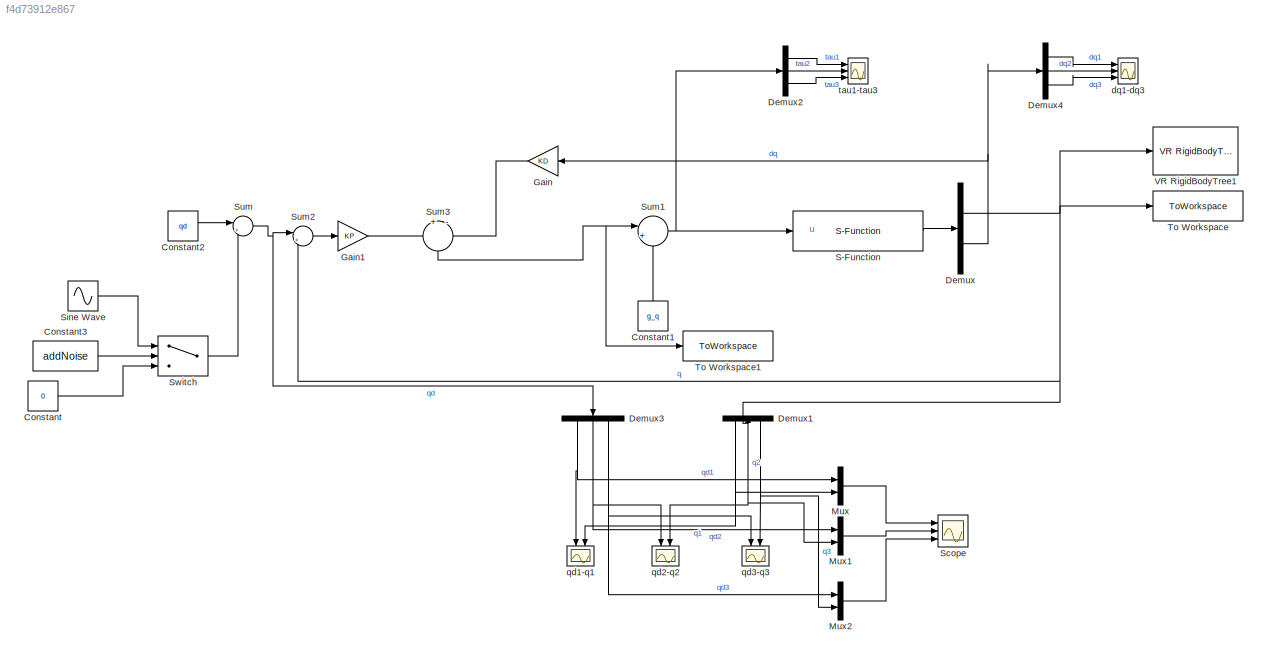
MODEL slx_f4d73912e867
KIND model
CONFIG AbsTol = auto
CONFIG EnableMultiTasking = off
CONFIG FixedStep = Ts
CONFIG MaxStep = auto
CONFIG MinStep = auto
CONFIG RelTol = 1e-3
CONFIG SampleTimeConstraint = Unconstrained
CONFIG SolverName = FixedStepAuto
CONFIG StartTime = 0.0
CONFIG StopTime = 2
BLOCK [Constant] Constant
  Value = 0
BLOCK [Constant] Constant1
  NameLocation = left
  Value = g_q
BLOCK [Constant] Constant2
  Value = qd
BLOCK [Constant] Constant3
  Value = addNoise
BLOCK [Demux] Demux
  Outputs = 2
  Ports = [1, 2]
BLOCK [Demux] Demux1
  NameLocation = left
  Outputs = myRobot.N
  Ports = [1, 3]
BLOCK [Demux] Demux2
  Outputs = myRobot.N
  Ports = [1, 3]
BLOCK [Demux] Demux3
  NameLocation = left
  Outputs = myRobot.N
  Ports = [1, 3]
BLOCK [Demux] Demux4
  Outputs = myRobot.N
  Ports = [1, 3]
BLOCK [Gain] Gain
  Gain = KD
BLOCK [Gain] Gain1
  Gain = KP
BLOCK [Mux] Mux
  DisplayOption = bar
  Inputs = 2
  Ports = [2, 1]
BLOCK [Mux] Mux1
  DisplayOption = bar
  Inputs = 2
  Ports = [2, 1]
BLOCK [Mux] Mux2
  DisplayOption = bar
  Inputs = 2
  Ports = [2, 1]
BLOCK [S-Function] S-Function
  EnableBusSupport = off
  FunctionName = fwd_dyn_joint_lagrangian
  Parameters = myRobot,qi,dqi
  Ports = [1, 1]
  SFcnIsStateOwnerBlock = off
  SFunctionDeploymentMode = off
BLOCK [Scope] Scope
  Floating = off
  NumInputPorts = 3
  Ports = [3]
  ScopeSpecificationString = Simulink.scopes.TimeScopeBlockCfg('CurrentConfiguration', extmgr.ConfigurationSet(extmgr.Configuration('Core','General UI',true),extmgr.Configuration('Core','Source UI',true),extmgr.Configuration('Sources','WiredSimulink',true,'DataLoggingVariableName','ScopeData1'),extmgr.Configuration('Visuals','Time Domain',true,'SerializedDisplays',{struct('MinYLimReal','-0.4052','MaxYLimReal','3.64679','YLabe...<+2703ch>
BLOCK [Sin] Sine Wave
  Amplitude = 0.1
  Frequency = 5
  Ports = [0, 1]
  SampleTime = 0
BLOCK [Sum] Sum
  Inputs = |++
  Ports = [2, 1]
BLOCK [Sum] Sum1
  Inputs = |++
  Ports = [2, 1]
BLOCK [Sum] Sum2
  Inputs = |+-
  Ports = [2, 1]
BLOCK [Sum] Sum3
  Inputs = +||-
  NameLocation = right
  Ports = [2, 1]
BLOCK [Switch] Switch
  Criteria = u2 > Threshold
  InputSameDT = off
  SaturateOnIntegerOverflow = off
BLOCK [ToWorkspace] To Workspace
  FixptAsFi = on
  MaxDataPoints = inf
  Ports = [1]
  SampleTime = -1
  SaveFormat = Timeseries
  VariableName = q_result
BLOCK [ToWorkspace] To Workspace1
  FixptAsFi = on
  MaxDataPoints = inf
  Ports = [1]
  SampleTime = -1
  SaveFormat = Timeseries
  VariableName = tau_noG
BLOCK [Reference] VR RigidBodyTree1  REF=vrlib/VR RigidBodyTree
  Ports = [1]
  SourceBlock = vrlib/VR RigidBodyTree
  SourceProductBaseCode = SL
  SourceType = VR RigidBodyTree
BLOCK [Scope] dq1-dq3
  Floating = off
  NumInputPorts = 3
  Ports = [3]
  ScopeSpecificationString = Simulink.scopes.TimeScopeBlockCfg('CurrentConfiguration', extmgr.ConfigurationSet(extmgr.Configuration('Core','General UI',true),extmgr.Configuration('Core','Source UI',true),extmgr.Configuration('Sources','WiredSimulink',true,'DataLoggingVariableName','ScopeData1'),extmgr.Configuration('Visuals','Time Domain',true,'SerializedDisplays',{struct('MinYLimReal','-2.92013','MaxYLimReal','26.28115','YLa...<+2737ch>
BLOCK [Scope] qd1-q1
  Floating = off
  NameLocation = left
  NumInputPorts = 2
  Ports = [2]
  ScopeSpecificationString = Simulink.scopes.TimeScopeBlockCfg('CurrentConfiguration', extmgr.ConfigurationSet(extmgr.Configuration('Core','General UI',true),extmgr.Configuration('Core','Source UI',true),extmgr.Configuration('Sources','WiredSimulink',true,'DataLoggingVariableName','ScopeData1'),extmgr.Configuration('Visuals','Time Domain',true,'SerializedDisplays',{struct('MinYLimReal','-0.3927','MaxYLimReal','3.53429','YLabe...<+1702ch>
BLOCK [Scope] qd2-q2
  Floating = off
  NameLocation = left
  NumInputPorts = 2
  Ports = [2]
  ScopeSpecificationString = Simulink.scopes.TimeScopeBlockCfg('CurrentConfiguration', extmgr.ConfigurationSet(extmgr.Configuration('Core','General UI',true),extmgr.Configuration('Core','Source UI',true),extmgr.Configuration('Sources','WiredSimulink',true,'DataLoggingVariableName','ScopeData2'),extmgr.Configuration('Visuals','Time Domain',true,'SerializedDisplays',{struct('MinYLimReal','-0.31169','MaxYLimReal','0.03463','YLab...<+1722ch>
BLOCK [Scope] qd3-q3
  Floating = off
  NameLocation = left
  NumInputPorts = 2
  Ports = [2]
  ScopeSpecificationString = Simulink.scopes.TimeScopeBlockCfg('CurrentConfiguration', extmgr.ConfigurationSet(extmgr.Configuration('Core','General UI',true),extmgr.Configuration('Core','Source UI',true),extmgr.Configuration('Sources','WiredSimulink',true,'DataLoggingVariableName','ScopeData3'),extmgr.Configuration('Visuals','Time Domain',true,'SerializedDisplays',{struct('MinYLimReal','-3.53429','MaxYLimReal','0.3927','YLabe...<+1731ch>
BLOCK [Scope] tau1-tau3
  Floating = off
  NumInputPorts = 3
  Ports = [3]
  ScopeSpecificationString = Simulink.scopes.TimeScopeBlockCfg('CurrentConfiguration', extmgr.ConfigurationSet(extmgr.Configuration('Core','General UI',true),extmgr.Configuration('Core','Source UI',true),extmgr.Configuration('Sources','WiredSimulink',true),extmgr.Configuration('Visuals','Time Domain',true,'SerializedDisplays',{struct('MinYLimReal','-43.31628','MaxYLimReal','179.34585','YLabelReal','','MinYLimMag','0.00000','M...<+2777ch>
ANNOTATION (root): u
LINE Constant1:1 -> Sum1:2
LINE Constant2:1 -> Sum:1
LINE Constant3:1 -> Switch:2
LINE Constant:1 -> Switch:3
NET Demux1:1 -> Mux:2, qd1-q1:2
NET Demux1:2 -> Mux1:2, qd2-q2:2
NET Demux1:3 -> Mux2:2, qd3-q3:2
LINE Demux2:1 -> tau1-tau3:1
LINE Demux2:2 -> tau1-tau3:2
LINE Demux2:3 -> tau1-tau3:3
NET Demux3:1 -> Mux:1, qd1-q1:1
NET Demux3:2 -> Mux1:1, qd2-q2:1
NET Demux3:3 -> Mux2:1, qd3-q3:1
LINE Demux4:1 -> dq1-dq3:1
LINE Demux4:2 -> dq1-dq3:2
LINE Demux4:3 -> dq1-dq3:3
NET Demux:1 -> Demux1:1, Sum2:2, To Workspace:1, VR RigidBodyTree1:1
NET Demux:2 -> Demux4:1, Gain:1
LINE Gain1:1 -> Sum3:1
LINE Gain:1 -> Sum3:2
LINE Mux1:1 -> Scope:2
LINE Mux2:1 -> Scope:3
LINE Mux:1 -> Scope:1
LINE S-Function:1 -> Demux:1
LINE Sine Wave:1 -> Switch:1
NET Sum1:1 -> Demux2:1, S-Function:1
LINE Sum2:1 -> Gain1:1
NET Sum3:1 -> Sum1:1, To Workspace1:1
NET Sum:1 -> Demux3:1, Sum2:1
LINE Switch:1 -> Sum:2
note: NET lines group one-source signal fan-out (src -> all destinations, sorted); 1:1 wires keep LINE
